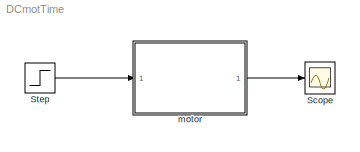
MODEL DCmotTime
KIND model
BLOCK [Scope] Scope
  DataFormat = StructureWithTime
  NumInputPorts = 1
  Ports = [1]
BLOCK [Step] Step
  After = 23.89
  Before = 3
  SampleTime = 0
  Time = 2
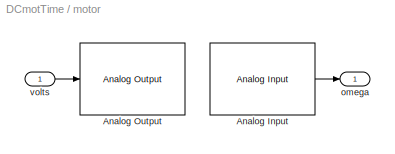
BLOCK [SubSystem] motor
  MinAlgLoopOccurrences = off
  Ports = [1, 1]
  RTWSystemCode = Auto
  TreatAsAtomicUnit = off
BLOCK [Reference] motor/Analog Input  REF=qctools/Quanser Consulting\nMultiQ-PCI Series/Analog Input
  Ports = [0, 1]
  SourceBlock = qctools/Quanser Consulting\nMultiQ-PCI Series/Analog Input
  SourceType = Analog Input
  boardNumber = 0
  channels = 2
  ranges = 10
  sampleTime = simget(bdroot,'FixedStep')
  simulationInput = off
BLOCK [Reference] motor/Analog Output  REF=qctools/Quanser Consulting\nMultiQ-PCI Series/Analog Output
  Ports = [1]
  SourceBlock = qctools/Quanser Consulting\nMultiQ-PCI Series/Analog Output
  SourceType = Analog Output
  boardNumber = 0
  channels = 0
  finalOutputs = 0
  initialOutputs = 0
  sampleTime = -1
  simulationOutput = off
BLOCK [Outport] motor/omega
  BusOutputAsStruct = off
  IconDisplay = Port number
BLOCK [Inport] motor/volts
  IconDisplay = Port number
  LatchInput = off
  Port = 1
LINE Step:1 -> motor:1
LINE motor/Analog Input:1 -> motor/omega:1
LINE motor/volts:1 -> motor/Analog Output:1
LINE motor:1 -> Scope:1
